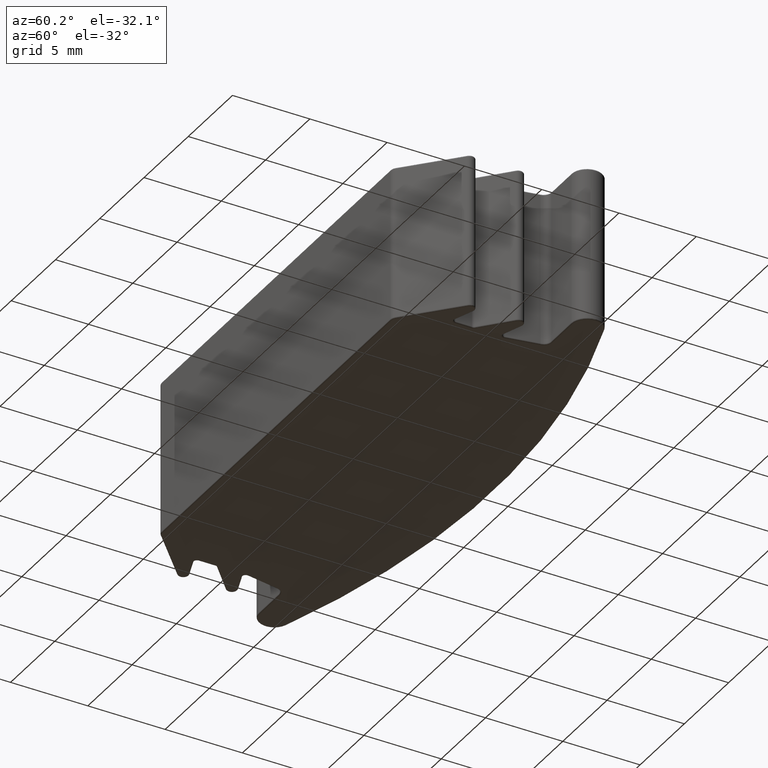
[diagram: clean part render]
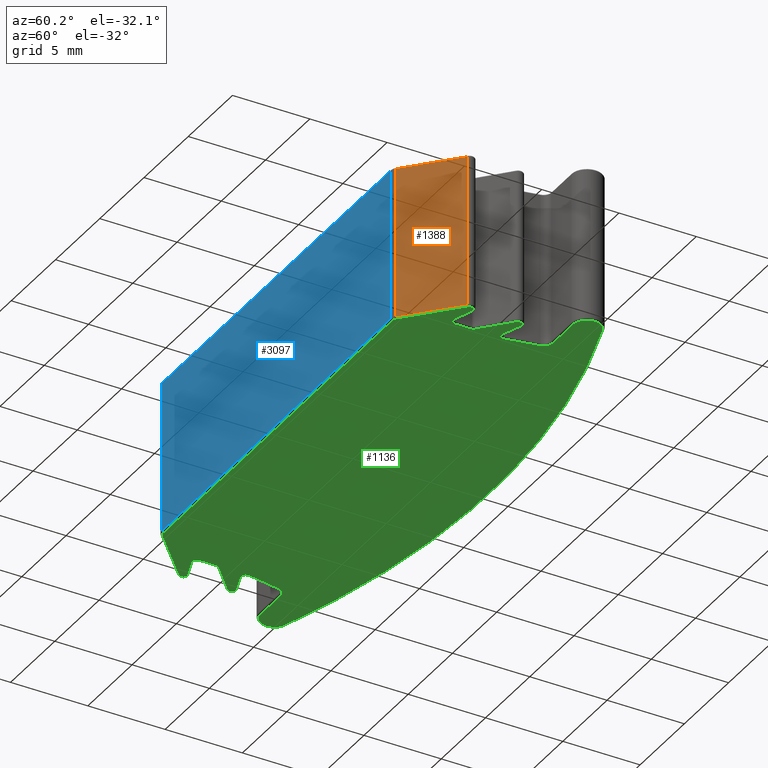
[diagram: same view with three faces highlighted in distinct colors, each labeled with its STEP entity id]
A machine part, auxiliary view with three faces highlighted in distinct colors.
Their STEP definitions:

[orange] entity #1388 — the highlighted planar face has unit normal (0.6747, -0.7381, 0).
#143 = ORIENTED_EDGE ( 'NONE', *, *, #1403, .T. ) ;
#356 = CARTESIAN_POINT ( 'NONE',  ( 13.26152479738510300, 0.1309489122441827900, -4.899999999999999500 ) ) ;
#553 = VECTOR ( 'NONE', #2066, 1000.000000000000000 ) ;
#586 = EDGE_CURVE ( 'NONE', #2586, #2012, #2091, .T. ) ;
#684 = ORIENTED_EDGE ( 'NONE', *, *, #586, .T. ) ;
#893 = CARTESIAN_POINT ( 'NONE',  ( 13.26152479738510300, 0.1309489122441827900, 4.899999999999998600 ) ) ;
#956 = AXIS2_PLACEMENT_3D ( 'NONE', #2329, #2849, #3091 ) ;
#963 = CARTESIAN_POINT ( 'NONE',  ( 16.38614113230621800, 2.987117315987830600, -5.000000000000000000 ) ) ;
#1080 = EDGE_CURVE ( 'NONE', #2012, #1759, #2661, .T. ) ;
#1178 = VECTOR ( 'NONE', #1661, 1000.000000000000100 ) ;
#1379 = PLANE ( 'NONE',  #956 ) ;
#1388 = ADVANCED_FACE ( 'NONE', ( #2170 ), #1379, .T. ) ;
#1403 = EDGE_CURVE ( 'NONE', #1759, #1428, #1810, .T. ) ;
#1428 = VERTEX_POINT ( 'NONE', #893 ) ;
#1448 = CARTESIAN_POINT ( 'NONE',  ( 16.38614113230621800, 2.987117315987830600, 4.899999999999998600 ) ) ;
#1467 = ORIENTED_EDGE ( 'NONE', *, *, #2298, .F. ) ;
#1661 = DIRECTION ( 'NONE',  ( 0.7381021755116327100, 0.6746889494463317300, -0.0000000000000000000 ) ) ;
#1759 = VERTEX_POINT ( 'NONE', #1448 ) ;
#1810 = LINE ( 'NONE', #3081, #2461 ) ;
#1836 = DIRECTION ( 'NONE',  ( -0.7381021755116327100, -0.6746889494463317300, 0.0000000000000000000 ) ) ;
#1918 = CARTESIAN_POINT ( 'NONE',  ( 16.38614113230621800, 2.987117315987830100, -4.899999999999999500 ) ) ;
#2012 = VERTEX_POINT ( 'NONE', #2077 ) ;
#2066 = DIRECTION ( 'NONE',  ( 0.0000000000000000000, 0.0000000000000000000, 1.000000000000000000 ) ) ;
#2077 = CARTESIAN_POINT ( 'NONE',  ( 16.38614113230621800, 2.987117315987830600, -4.899999999999999500 ) ) ;
#2091 = LINE ( 'NONE', #1918, #1178 ) ;
#2170 = FACE_OUTER_BOUND ( 'NONE', #2381, .T. ) ;
#2201 = LINE ( 'NONE', #3025, #553 ) ;
#2209 = DIRECTION ( 'NONE',  ( 0.0000000000000000000, 0.0000000000000000000, 1.000000000000000000 ) ) ;
#2298 = EDGE_CURVE ( 'NONE', #2586, #1428, #2201, .T. ) ;
#2329 = CARTESIAN_POINT ( 'NONE',  ( 16.38614113230621800, 2.987117315987830600, -5.000000000000000000 ) ) ;
#2381 = EDGE_LOOP ( 'NONE', ( #3038, #143, #1467, #684 ) ) ;
#2461 = VECTOR ( 'NONE', #1836, 1000.000000000000100 ) ;
#2584 = VECTOR ( 'NONE', #2209, 1000.000000000000000 ) ;
#2586 = VERTEX_POINT ( 'NONE', #356 ) ;
#2661 = LINE ( 'NONE', #963, #2584 ) ;
#2849 = DIRECTION ( 'NONE',  ( 0.6746889494463318400, -0.7381021755116328200, 0.0000000000000000000 ) ) ;
#3025 = CARTESIAN_POINT ( 'NONE',  ( 13.26152479738510300, 0.1309489122441827900, -5.000000000000000000 ) ) ;
#3038 = ORIENTED_EDGE ( 'NONE', *, *, #1080, .T. ) ;
#3081 = CARTESIAN_POINT ( 'NONE',  ( 16.38614113230621800, 2.987117315987830600, 4.899999999999998600 ) ) ;
#3091 = DIRECTION ( 'NONE',  ( -0.7381021755116327100, -0.6746889494463317300, 0.0000000000000000000 ) ) ;

[blue] entity #3097 — the highlighted planar face has unit normal (-0, -1, 0).
#7 = FACE_OUTER_BOUND ( 'NONE', #2817, .T. ) ;
#222 = LINE ( 'NONE', #226, #257 ) ;
#226 = CARTESIAN_POINT ( 'NONE',  ( 12.92418032266193600, 0.0000000000000000000, -5.000000000000000000 ) ) ;
#257 = VECTOR ( 'NONE', #2901, 1000.000000000000000 ) ;
#570 = DIRECTION ( 'NONE',  ( 1.000000000000000000, -3.038329476900202600E-018, 0.0000000000000000000 ) ) ;
#635 = VERTEX_POINT ( 'NONE', #1265 ) ;
#646 = EDGE_CURVE ( 'NONE', #1727, #735, #2172, .T. ) ;
#676 = VERTEX_POINT ( 'NONE', #1969 ) ;
#735 = VERTEX_POINT ( 'NONE', #1284 ) ;
#770 = AXIS2_PLACEMENT_3D ( 'NONE', #2490, #1070, #570 ) ;
#781 = VECTOR ( 'NONE', #1753, 1000.000000000000000 ) ;
#1070 = DIRECTION ( 'NONE',  ( -3.038329476900202600E-018, -1.000000000000000000, 0.0000000000000000000 ) ) ;
#1075 = EDGE_CURVE ( 'NONE', #635, #1727, #222, .T. ) ;
#1177 = DIRECTION ( 'NONE',  ( 0.0000000000000000000, 0.0000000000000000000, 1.000000000000000000 ) ) ;
#1245 = VECTOR ( 'NONE', #1177, 1000.000000000000000 ) ;
#1265 = CARTESIAN_POINT ( 'NONE',  ( 12.92418032266193600, 0.0000000000000000000, -4.899999999999999500 ) ) ;
#1284 = CARTESIAN_POINT ( 'NONE',  ( -12.92418032266193600, 0.0000000000000000000, 4.899999999999998600 ) ) ;
#1368 = CARTESIAN_POINT ( 'NONE',  ( 12.92418032266193600, 0.0000000000000000000, 4.899999999999998600 ) ) ;
#1484 = CARTESIAN_POINT ( 'NONE',  ( -12.92418032266193600, 0.0000000000000000000, 4.899999999999998600 ) ) ;
#1522 = EDGE_CURVE ( 'NONE', #676, #735, #2882, .T. ) ;
#1608 = CARTESIAN_POINT ( 'NONE',  ( 12.92418032266193600, -7.853583607823466000E-017, -4.899999999999999500 ) ) ;
#1727 = VERTEX_POINT ( 'NONE', #1368 ) ;
#1753 = DIRECTION ( 'NONE',  ( -1.000000000000000000, 3.038329476900202600E-018, -0.0000000000000000000 ) ) ;
#1773 = ORIENTED_EDGE ( 'NONE', *, *, #646, .T. ) ;
#1807 = ORIENTED_EDGE ( 'NONE', *, *, #1075, .T. ) ;
#1845 = DIRECTION ( 'NONE',  ( 1.000000000000000000, -3.038329476900202600E-018, 0.0000000000000000000 ) ) ;
#1850 = EDGE_CURVE ( 'NONE', #676, #635, #2080, .T. ) ;
#1969 = CARTESIAN_POINT ( 'NONE',  ( -12.92418032266193600, 0.0000000000000000000, -4.899999999999999500 ) ) ;
#2080 = LINE ( 'NONE', #1608, #2318 ) ;
#2172 = LINE ( 'NONE', #1484, #781 ) ;
#2318 = VECTOR ( 'NONE', #1845, 1000.000000000000000 ) ;
#2416 = ORIENTED_EDGE ( 'NONE', *, *, #1522, .F. ) ;
#2490 = CARTESIAN_POINT ( 'NONE',  ( -12.92418032266193600, 0.0000000000000000000, -5.000000000000000000 ) ) ;
#2526 = PLANE ( 'NONE',  #770 ) ;
#2570 = CARTESIAN_POINT ( 'NONE',  ( -12.92418032266193600, 0.0000000000000000000, -5.000000000000000000 ) ) ;
#2606 = ORIENTED_EDGE ( 'NONE', *, *, #1850, .T. ) ;
#2817 = EDGE_LOOP ( 'NONE', ( #1807, #1773, #2416, #2606 ) ) ;
#2882 = LINE ( 'NONE', #2570, #1245 ) ;
#2901 = DIRECTION ( 'NONE',  ( 0.0000000000000000000, 0.0000000000000000000, 1.000000000000000000 ) ) ;
#3097 = ADVANCED_FACE ( 'NONE', ( #7 ), #2526, .T. ) ;

[green] entity #1136 — the highlighted planar face has unit normal (0, 0, 1).
#15 = CIRCLE ( 'NONE', #422, 0.3000000000000033800 ) ;
#42 = CARTESIAN_POINT ( 'NONE',  ( 14.80319624381272100, 3.018307729493785000, -5.000000000000000000 ) ) ;
#43 = CARTESIAN_POINT ( 'NONE',  ( 12.92418032266193600, 0.09999999999999889500, -5.000000000000000000 ) ) ;
#59 = DIRECTION ( 'NONE',  ( 1.000000000000000000, 0.0000000000000000000, -0.0000000000000000000 ) ) ;
#65 = VERTEX_POINT ( 'NONE', #1719 ) ;
#73 = AXIS2_PLACEMENT_3D ( 'NONE', #2784, #2537, #1829 ) ;
#84 = LINE ( 'NONE', #923, #396 ) ;
#85 = DIRECTION ( 'NONE',  ( 1.000000000000000000, 0.0000000000000000000, 0.0000000000000000000 ) ) ;
#96 = CARTESIAN_POINT ( 'NONE',  ( 17.64999999999999900, 9.999999999999998200, -5.000000000000000000 ) ) ;
#108 = ORIENTED_EDGE ( 'NONE', *, *, #1893, .T. ) ;
#139 = CIRCLE ( 'NONE', #2701, 0.2500000000000002200 ) ;
#148 = CARTESIAN_POINT ( 'NONE',  ( -13.19405590244047000, 0.2047591297953455800, -5.000000000000000000 ) ) ;
#158 = DIRECTION ( 'NONE',  ( 0.0000000000000000000, 0.0000000000000000000, 1.000000000000000000 ) ) ;
#164 = EDGE_CURVE ( 'NONE', #2479, #2999, #2446, .T. ) ;
#165 = CARTESIAN_POINT ( 'NONE',  ( -16.15000000000000200, 3.245453077416903500, -5.000000000000000000 ) ) ;
#170 = DIRECTION ( 'NONE',  ( 1.000000000000000000, -8.131516293641262500E-016, 0.0000000000000000000 ) ) ;
#183 = ORIENTED_EDGE ( 'NONE', *, *, #387, .T. ) ;
#206 = AXIS2_PLACEMENT_3D ( 'NONE', #437, #1920, #3138 ) ;
#208 = CARTESIAN_POINT ( 'NONE',  ( -14.79928716324520500, 6.166288742814181500, -5.000000000000000000 ) ) ;
#217 = CIRCLE ( 'NONE', #1000, 0.2500000000000002200 ) ;
#238 = CARTESIAN_POINT ( 'NONE',  ( 15.37056213245575800, 9.100000000000001400, -5.000000000000000000 ) ) ;
#239 = DIRECTION ( 'NONE',  ( -0.0000000000000000000, -0.0000000000000000000, -1.000000000000000000 ) ) ;
#263 = EDGE_CURVE ( 'NONE', #2111, #1067, #2174, .T. ) ;
#276 = CARTESIAN_POINT ( 'NONE',  ( -14.69684345351877600, 6.448255560609276800, -5.000000000000000000 ) ) ;
#286 = CIRCLE ( 'NONE', #1486, 0.8999999999999980200 ) ;
#294 = FACE_OUTER_BOUND ( 'NONE', #2358, .T. ) ;
#299 = DIRECTION ( 'NONE',  ( 1.000000000000000000, 0.0000000000000000000, 0.0000000000000000000 ) ) ;
#304 = CARTESIAN_POINT ( 'NONE',  ( -17.64999999999999900, 9.999999999999998200, -5.000000000000000000 ) ) ;
#314 = DIRECTION ( 'NONE',  ( 1.000000000000000000, 0.0000000000000000000, 0.0000000000000000000 ) ) ;
#323 = EDGE_CURVE ( 'NONE', #1406, #1535, #2142, .T. ) ;
#328 = DIRECTION ( 'NONE',  ( 1.000000000000000000, 0.0000000000000000000, 0.0000000000000000000 ) ) ;
#348 = ORIENTED_EDGE ( 'NONE', *, *, #2719, .T. ) ;
#372 = ORIENTED_EDGE ( 'NONE', *, *, #471, .T. ) ;
#375 = ORIENTED_EDGE ( 'NONE', *, *, #164, .T. ) ;
#383 = CIRCLE ( 'NONE', #1158, 54.32041666666667400 ) ;
#387 = EDGE_CURVE ( 'NONE', #1752, #1824, #1479, .T. ) ;
#392 = CARTESIAN_POINT ( 'NONE',  ( 14.40157827324061800, 6.501344856284637400, -5.000000000000000000 ) ) ;
#396 = VECTOR ( 'NONE', #714, 1000.000000000000100 ) ;
#401 = LINE ( 'NONE', #1404, #2460 ) ;
#403 = ORIENTED_EDGE ( 'NONE', *, *, #423, .T. ) ;
#413 = VERTEX_POINT ( 'NONE', #2853 ) ;
#416 = ORIENTED_EDGE ( 'NONE', *, *, #652, .T. ) ;
#420 = DIRECTION ( 'NONE',  ( 1.000000000000000000, 0.0000000000000000000, 0.0000000000000000000 ) ) ;
#422 = AXIS2_PLACEMENT_3D ( 'NONE', #2566, #158, #3088 ) ;
#423 = EDGE_CURVE ( 'NONE', #413, #687, #426, .T. ) ;
#426 = CIRCLE ( 'NONE', #2110, 0.4000000000000010200 ) ;
#437 = CARTESIAN_POINT ( 'NONE',  ( 14.70000000000000300, 3.299999999999999800, -5.000000000000000000 ) ) ;
#438 = VECTOR ( 'NONE', #2625, 1000.000000000000100 ) ;
#440 = DIRECTION ( 'NONE',  ( 0.0000000000000000000, 0.0000000000000000000, 1.000000000000000000 ) ) ;
#442 = CIRCLE ( 'NONE', #206, 0.3000000000000016500 ) ;
#444 = VERTEX_POINT ( 'NONE', #1904 ) ;
#446 = DIRECTION ( 'NONE',  ( -0.7458248930639943500, 0.6661420485797914200, -0.0000000000000000000 ) ) ;
#453 = VERTEX_POINT ( 'NONE', #683 ) ;
#454 = CARTESIAN_POINT ( 'NONE',  ( -14.40157827324061300, 6.501344856284637400, -5.000000000000000000 ) ) ;
#458 = ORIENTED_EDGE ( 'NONE', *, *, #2185, .T. ) ;
#471 = EDGE_CURVE ( 'NONE', #1233, #1246, #2561, .T. ) ;
#490 = AXIS2_PLACEMENT_3D ( 'NONE', #3072, #632, #420 ) ;
#491 = CARTESIAN_POINT ( 'NONE',  ( -17.94735821978175800, 10.84945752638269500, -5.000000000000000000 ) ) ;
#515 = DIRECTION ( 'NONE',  ( 0.0000000000000000000, 0.0000000000000000000, 1.000000000000000000 ) ) ;
#523 = CIRCLE ( 'NONE', #844, 0.2500000000000002200 ) ;
#529 = AXIS2_PLACEMENT_3D ( 'NONE', #1881, #2372, #897 ) ;
#563 = ORIENTED_EDGE ( 'NONE', *, *, #581, .T. ) ;
#581 = EDGE_CURVE ( 'NONE', #849, #453, #2632, .T. ) ;
#599 = LINE ( 'NONE', #2589, #1741 ) ;
#620 = DIRECTION ( 'NONE',  ( -0.1769643189178684300, 0.9842172675938656300, -0.0000000000000000000 ) ) ;
#621 = LINE ( 'NONE', #1628, #887 ) ;
#632 = DIRECTION ( 'NONE',  ( 0.0000000000000000000, 0.0000000000000000000, 1.000000000000000000 ) ) ;
#638 = DIRECTION ( 'NONE',  ( -0.0000000000000000000, -0.0000000000000000000, -1.000000000000000000 ) ) ;
#644 = CARTESIAN_POINT ( 'NONE',  ( 14.70000000000000100, 4.358516086231699800, -5.000000000000000000 ) ) ;
#651 = CARTESIAN_POINT ( 'NONE',  ( -14.78003177189943800, 8.606178591350721200, -5.000000000000000000 ) ) ;
#652 = EDGE_CURVE ( 'NONE', #1012, #1796, #139, .T. ) ;
#668 = ORIENTED_EDGE ( 'NONE', *, *, #1577, .T. ) ;
#683 = CARTESIAN_POINT ( 'NONE',  ( -14.80319624381272100, 3.018307729493785500, -5.000000000000000000 ) ) ;
#687 = VERTEX_POINT ( 'NONE', #43 ) ;
#689 = VERTEX_POINT ( 'NONE', #1734 ) ;
#690 = DIRECTION ( 'NONE',  ( -0.7381021755116327100, -0.6746889494463317300, 0.0000000000000000000 ) ) ;
#703 = EDGE_CURVE ( 'NONE', #2999, #1992, #217, .T. ) ;
#714 = DIRECTION ( 'NONE',  ( -0.1769643189178684300, -0.9842172675938656300, 0.0000000000000000000 ) ) ;
#720 = ORIENTED_EDGE ( 'NONE', *, *, #2121, .T. ) ;
#723 = EDGE_CURVE ( 'NONE', #1124, #1559, #286, .T. ) ;
#746 = ORIENTED_EDGE ( 'NONE', *, *, #865, .T. ) ;
#751 = EDGE_CURVE ( 'NONE', #453, #65, #3139, .T. ) ;
#755 = DIRECTION ( 'NONE',  ( -0.0000000000000000000, -0.0000000000000000000, -1.000000000000000000 ) ) ;
#758 = ORIENTED_EDGE ( 'NONE', *, *, #918, .T. ) ;
#762 = DIRECTION ( 'NONE',  ( 1.000000000000000000, 0.0000000000000000000, 0.0000000000000000000 ) ) ;
#766 = ORIENTED_EDGE ( 'NONE', *, *, #2938, .T. ) ;
#771 = LINE ( 'NONE', #774, #1493 ) ;
#774 = CARTESIAN_POINT ( 'NONE',  ( 14.40000000000000200, 3.299999999999997200, -5.000000000000000000 ) ) ;
#780 = ORIENTED_EDGE ( 'NONE', *, *, #751, .T. ) ;
#797 = DIRECTION ( 'NONE',  ( 0.0000000000000000000, 0.0000000000000000000, 1.000000000000000000 ) ) ;
#806 = CARTESIAN_POINT ( 'NONE',  ( 16.15000000000000200, 6.391038712572399300, -5.000000000000000000 ) ) ;
#814 = VERTEX_POINT ( 'NONE', #1060 ) ;
#816 = DIRECTION ( 'NONE',  ( -0.0000000000000000000, -0.0000000000000000000, -1.000000000000000000 ) ) ;
#817 = DIRECTION ( 'NONE',  ( -0.0000000000000000000, -0.0000000000000000000, -1.000000000000000000 ) ) ;
#835 = DIRECTION ( 'NONE',  ( -1.638825803916117600E-015, 1.000000000000000000, -0.0000000000000000000 ) ) ;
#844 = AXIS2_PLACEMENT_3D ( 'NONE', #165, #2620, #910 ) ;
#849 = VERTEX_POINT ( 'NONE', #2086 ) ;
#853 = EDGE_CURVE ( 'NONE', #814, #1233, #1949, .T. ) ;
#865 = EDGE_CURVE ( 'NONE', #2889, #1266, #1248, .T. ) ;
#871 = EDGE_CURVE ( 'NONE', #65, #2641, #599, .T. ) ;
#887 = VECTOR ( 'NONE', #2146, 1000.000000000000100 ) ;
#891 = CIRCLE ( 'NONE', #529, 0.2500000000000002200 ) ;
#897 = DIRECTION ( 'NONE',  ( 1.000000000000000000, 0.0000000000000000000, 0.0000000000000000000 ) ) ;
#909 = EDGE_CURVE ( 'NONE', #2698, #849, #523, .T. ) ;
#910 = DIRECTION ( 'NONE',  ( 1.000000000000000000, 1.734723475976805500E-015, 0.0000000000000000000 ) ) ;
#918 = EDGE_CURVE ( 'NONE', #1796, #413, #3035, .T. ) ;
#921 = VECTOR ( 'NONE', #3147, 1000.000000000000100 ) ;
#923 = CARTESIAN_POINT ( 'NONE',  ( 14.40157827324061800, 6.501344856284639200, -5.000000000000000000 ) ) ;
#931 = DIRECTION ( 'NONE',  ( -1.000000000000000000, -1.522062523112960000E-015, 0.0000000000000000000 ) ) ;
#933 = CARTESIAN_POINT ( 'NONE',  ( -14.80319624381272100, 3.018307729493785500, -5.000000000000000000 ) ) ;
#982 = ORIENTED_EDGE ( 'NONE', *, *, #2550, .T. ) ;
#985 = EDGE_CURVE ( 'NONE', #2045, #444, #2397, .T. ) ;
#995 = AXIS2_PLACEMENT_3D ( 'NONE', #2947, #2240, #59 ) ;
#1000 = AXIS2_PLACEMENT_3D ( 'NONE', #806, #3005, #328 ) ;
#1012 = VERTEX_POINT ( 'NONE', #2145 ) ;
#1022 = VERTEX_POINT ( 'NONE', #454 ) ;
#1030 = DIRECTION ( 'NONE',  ( -1.638825803916117600E-015, -1.000000000000000000, 0.0000000000000000000 ) ) ;
#1060 = CARTESIAN_POINT ( 'NONE',  ( -16.31653551214494900, 6.204582489306398300, -5.000000000000000000 ) ) ;
#1066 = CARTESIAN_POINT ( 'NONE',  ( -14.79928716324520500, 6.166288742814181500, -5.000000000000000000 ) ) ;
#1067 = VERTEX_POINT ( 'NONE', #491 ) ;
#1072 = CARTESIAN_POINT ( 'NONE',  ( 16.31653551214494900, 6.204582489306400100, -5.000000000000000000 ) ) ;
#1079 = EDGE_CURVE ( 'NONE', #1559, #1670, #2089, .T. ) ;
#1107 = DIRECTION ( 'NONE',  ( 0.0000000000000000000, 0.0000000000000000000, 1.000000000000000000 ) ) ;
#1124 = VERTEX_POINT ( 'NONE', #2199 ) ;
#1134 = EDGE_CURVE ( 'NONE', #2636, #1022, #2919, .T. ) ;
#1136 = ADVANCED_FACE ( 'NONE', ( #294 ), #2963, .F. ) ;
#1158 = AXIS2_PLACEMENT_3D ( 'NONE', #2998, #817, #1518 ) ;
#1161 = CARTESIAN_POINT ( 'NONE',  ( -15.37056213245575800, 9.099999999999999600, -5.000000000000000000 ) ) ;
#1162 = AXIS2_PLACEMENT_3D ( 'NONE', #2790, #1107, #3034 ) ;
#1179 = EDGE_CURVE ( 'NONE', #1246, #2636, #2364, .T. ) ;
#1198 = ORIENTED_EDGE ( 'NONE', *, *, #909, .T. ) ;
#1205 = DIRECTION ( 'NONE',  ( 1.000000000000000000, 7.709882115452493200E-015, 0.0000000000000000000 ) ) ;
#1211 = VERTEX_POINT ( 'NONE', #2974 ) ;
#1233 = VERTEX_POINT ( 'NONE', #2751 ) ;
#1235 = CARTESIAN_POINT ( 'NONE',  ( 16.15000000000000200, 3.245453077416903500, -5.000000000000000000 ) ) ;
#1246 = VERTEX_POINT ( 'NONE', #1066 ) ;
#1248 = LINE ( 'NONE', #2350, #2955 ) ;
#1251 = ORIENTED_EDGE ( 'NONE', *, *, #723, .T. ) ;
#1254 = DIRECTION ( 'NONE',  ( 1.000000000000000000, 0.0000000000000000000, 0.0000000000000000000 ) ) ;
#1266 = VERTEX_POINT ( 'NONE', #2783 ) ;
#1275 = LINE ( 'NONE', #1434, #1393 ) ;
#1277 = AXIS2_PLACEMENT_3D ( 'NONE', #2764, #1556, #85 ) ;
#1315 = CARTESIAN_POINT ( 'NONE',  ( -14.70000000000000300, 3.299999999999999800, -5.000000000000000000 ) ) ;
#1327 = VECTOR ( 'NONE', #1452, 1000.000000000000000 ) ;
#1393 = VECTOR ( 'NONE', #3129, 1000.000000000000000 ) ;
#1404 = CARTESIAN_POINT ( 'NONE',  ( -17.64999999999999900, 9.099999999999997900, -5.000000000000000000 ) ) ;
#1406 = VERTEX_POINT ( 'NONE', #651 ) ;
#1422 = CARTESIAN_POINT ( 'NONE',  ( 17.64999999999999900, 9.099999999999997900, -5.000000000000000000 ) ) ;
#1424 = VECTOR ( 'NONE', #446, 1000.000000000000100 ) ;
#1426 = CARTESIAN_POINT ( 'NONE',  ( -16.31867223736158600, 3.060927533538993800, -5.000000000000000000 ) ) ;
#1434 = CARTESIAN_POINT ( 'NONE',  ( -12.92418032266193600, 0.1000000000000000100, -5.000000000000000000 ) ) ;
#1446 = AXIS2_PLACEMENT_3D ( 'NONE', #1315, #797, #314 ) ;
#1452 = DIRECTION ( 'NONE',  ( 0.9389742350207133100, -0.3439874793757271600, -0.0000000000000000000 ) ) ;
#1471 = CARTESIAN_POINT ( 'NONE',  ( 16.40000000000000200, 6.391038712572399300, -5.000000000000000000 ) ) ;
#1479 = CIRCLE ( 'NONE', #1814, 0.4000000000000010200 ) ;
#1486 = AXIS2_PLACEMENT_3D ( 'NONE', #96, #816, #1517 ) ;
#1493 = VECTOR ( 'NONE', #1030, 1000.000000000000000 ) ;
#1517 = DIRECTION ( 'NONE',  ( 1.000000000000000000, 0.0000000000000000000, 0.0000000000000000000 ) ) ;
#1518 = DIRECTION ( 'NONE',  ( 1.000000000000000000, 5.365082999132067900E-015, 0.0000000000000000000 ) ) ;
#1535 = VERTEX_POINT ( 'NONE', #1161 ) ;
#1549 = ORIENTED_EDGE ( 'NONE', *, *, #1867, .T. ) ;
#1555 = VERTEX_POINT ( 'NONE', #1908 ) ;
#1556 = DIRECTION ( 'NONE',  ( 0.0000000000000000000, 0.0000000000000000000, 1.000000000000000000 ) ) ;
#1559 = VERTEX_POINT ( 'NONE', #1422 ) ;
#1568 = EDGE_CURVE ( 'NONE', #1555, #2889, #442, .T. ) ;
#1577 = EDGE_CURVE ( 'NONE', #687, #1752, #1275, .T. ) ;
#1605 = DIRECTION ( 'NONE',  ( 0.9389742350207133100, 0.3439874793757271600, -0.0000000000000000000 ) ) ;
#1611 = AXIS2_PLACEMENT_3D ( 'NONE', #2704, #2219, #1254 ) ;
#1618 = CARTESIAN_POINT ( 'NONE',  ( -14.39684345351877100, 6.448255560609276800, -5.000000000000000000 ) ) ;
#1628 = CARTESIAN_POINT ( 'NONE',  ( 16.06463024189465800, 6.626011060734973600, -5.000000000000000000 ) ) ;
#1644 = ORIENTED_EDGE ( 'NONE', *, *, #3164, .T. ) ;
#1659 = CARTESIAN_POINT ( 'NONE',  ( 14.50015738542606900, 4.582263554150902300, -5.000000000000000000 ) ) ;
#1670 = VERTEX_POINT ( 'NONE', #2056 ) ;
#1674 = ORIENTED_EDGE ( 'NONE', *, *, #2226, .T. ) ;
#1675 = AXIS2_PLACEMENT_3D ( 'NONE', #276, #515, #762 ) ;
#1696 = CIRCLE ( 'NONE', #1277, 0.2999999999999999300 ) ;
#1706 = DIRECTION ( 'NONE',  ( 1.000000000000000000, 0.0000000000000000000, 0.0000000000000000000 ) ) ;
#1708 = CARTESIAN_POINT ( 'NONE',  ( 17.94735821978175800, 10.84945752638269500, -5.000000000000000000 ) ) ;
#1713 = ORIENTED_EDGE ( 'NONE', *, *, #1910, .T. ) ;
#1719 = CARTESIAN_POINT ( 'NONE',  ( -14.40000000000000200, 3.299999999999999800, -5.000000000000000000 ) ) ;
#1734 = CARTESIAN_POINT ( 'NONE',  ( 14.79928716324520400, 6.166288742814186800, -5.000000000000000000 ) ) ;
#1741 = VECTOR ( 'NONE', #835, 1000.000000000000000 ) ;
#1752 = VERTEX_POINT ( 'NONE', #2022 ) ;
#1767 = VECTOR ( 'NONE', #2413, 1000.000000000000100 ) ;
#1775 = DIRECTION ( 'NONE',  ( -0.0000000000000000000, -0.0000000000000000000, -1.000000000000000000 ) ) ;
#1782 = ORIENTED_EDGE ( 'NONE', *, *, #853, .T. ) ;
#1796 = VERTEX_POINT ( 'NONE', #2129 ) ;
#1814 = AXIS2_PLACEMENT_3D ( 'NONE', #2583, #1874, #170 ) ;
#1817 = VERTEX_POINT ( 'NONE', #3062 ) ;
#1824 = VERTEX_POINT ( 'NONE', #148 ) ;
#1829 = DIRECTION ( 'NONE',  ( 1.000000000000000000, 0.0000000000000000000, 0.0000000000000000000 ) ) ;
#1831 = CARTESIAN_POINT ( 'NONE',  ( 14.50015738542606400, 4.582263554150897800, -5.000000000000000000 ) ) ;
#1848 = VECTOR ( 'NONE', #620, 1000.000000000000100 ) ;
#1867 = EDGE_CURVE ( 'NONE', #1876, #689, #15, .T. ) ;
#1874 = DIRECTION ( 'NONE',  ( -0.0000000000000000000, -0.0000000000000000000, -1.000000000000000000 ) ) ;
#1876 = VERTEX_POINT ( 'NONE', #392 ) ;
#1881 = CARTESIAN_POINT ( 'NONE',  ( 16.15000000000000200, 3.245453077416903500, -5.000000000000000000 ) ) ;
#1893 = EDGE_CURVE ( 'NONE', #1211, #814, #3102, .T. ) ;
#1901 = EDGE_CURVE ( 'NONE', #1535, #2111, #401, .T. ) ;
#1904 = CARTESIAN_POINT ( 'NONE',  ( 14.40000000000000200, 4.358516086231699800, -5.000000000000000000 ) ) ;
#1908 = CARTESIAN_POINT ( 'NONE',  ( 14.40000000000000200, 3.299999999999999800, -5.000000000000000000 ) ) ;
#1910 = EDGE_CURVE ( 'NONE', #1992, #2045, #2280, .T. ) ;
#1912 = AXIS2_PLACEMENT_3D ( 'NONE', #2749, #2981, #2946 ) ;
#1920 = DIRECTION ( 'NONE',  ( 0.0000000000000000000, 0.0000000000000000000, 1.000000000000000000 ) ) ;
#1928 = CARTESIAN_POINT ( 'NONE',  ( -16.31653551214495200, 6.204582489306400100, -5.000000000000000000 ) ) ;
#1949 = CIRCLE ( 'NONE', #73, 0.2500000000000002200 ) ;
#1992 = VERTEX_POINT ( 'NONE', #1072 ) ;
#2022 = CARTESIAN_POINT ( 'NONE',  ( -12.92418032266193600, 0.1000000000000000100, -5.000000000000000000 ) ) ;
#2030 = CARTESIAN_POINT ( 'NONE',  ( 16.06463024189465100, 6.626011060734970900, -5.000000000000000000 ) ) ;
#2039 = AXIS2_PLACEMENT_3D ( 'NONE', #644, #440, #1706 ) ;
#2045 = VERTEX_POINT ( 'NONE', #1831 ) ;
#2056 = CARTESIAN_POINT ( 'NONE',  ( 15.37056213245575800, 9.100000000000001400, -5.000000000000000000 ) ) ;
#2086 = CARTESIAN_POINT ( 'NONE',  ( -16.06400313015607000, 3.480196636172082900, -5.000000000000000000 ) ) ;
#2089 = LINE ( 'NONE', #238, #2246 ) ;
#2110 = AXIS2_PLACEMENT_3D ( 'NONE', #3079, #638, #2596 ) ;
#2111 = VERTEX_POINT ( 'NONE', #2590 ) ;
#2116 = ORIENTED_EDGE ( 'NONE', *, *, #1901, .T. ) ;
#2121 = EDGE_CURVE ( 'NONE', #1670, #1817, #2654, .T. ) ;
#2129 = CARTESIAN_POINT ( 'NONE',  ( 16.31867223736158600, 3.060927533538994700, -5.000000000000000000 ) ) ;
#2142 = CIRCLE ( 'NONE', #1162, 0.6000000000000015300 ) ;
#2145 = CARTESIAN_POINT ( 'NONE',  ( 16.40000000000000200, 3.245453077416903500, -5.000000000000000000 ) ) ;
#2146 = DIRECTION ( 'NONE',  ( 0.9398893926502898100, 0.3414790324214202500, -0.0000000000000000000 ) ) ;
#2174 = CIRCLE ( 'NONE', #2857, 0.8999999999999980200 ) ;
#2185 = EDGE_CURVE ( 'NONE', #1266, #1012, #891, .T. ) ;
#2199 = CARTESIAN_POINT ( 'NONE',  ( 18.54999999999999700, 9.999999999999998200, -5.000000000000000000 ) ) ;
#2219 = DIRECTION ( 'NONE',  ( 0.0000000000000000000, 0.0000000000000000000, 1.000000000000000000 ) ) ;
#2226 = EDGE_CURVE ( 'NONE', #1817, #1876, #84, .T. ) ;
#2229 = EDGE_CURVE ( 'NONE', #1824, #2698, #2615, .T. ) ;
#2240 = DIRECTION ( 'NONE',  ( 0.0000000000000000000, 0.0000000000000000000, 1.000000000000000000 ) ) ;
#2246 = VECTOR ( 'NONE', #2676, 1000.000000000000000 ) ;
#2262 = DIRECTION ( 'NONE',  ( 1.000000000000000000, 0.0000000000000000000, 0.0000000000000000000 ) ) ;
#2280 = LINE ( 'NONE', #1659, #438 ) ;
#2321 = CARTESIAN_POINT ( 'NONE',  ( -14.78003177189943800, 8.606178591350721200, -5.000000000000000000 ) ) ;
#2347 = ORIENTED_EDGE ( 'NONE', *, *, #703, .T. ) ;
#2350 = CARTESIAN_POINT ( 'NONE',  ( 16.06400313015607000, 3.480196636172083300, -5.000000000000000000 ) ) ;
#2358 = EDGE_LOOP ( 'NONE', ( #2116, #2848, #1644, #2903, #1251, #2935, #720, #1674, #1549, #348, #375, #2347, #1713, #2734, #766, #2436, #746, #458, #416, #758, #403, #668, #183, #3044, #1198, #563, #780, #2770, #3032, #108, #1782, #372, #2970, #2709, #982, #2393 ) ) ;
#2364 = CIRCLE ( 'NONE', #1675, 0.3000000000000033800 ) ;
#2372 = DIRECTION ( 'NONE',  ( -0.0000000000000000000, -0.0000000000000000000, -1.000000000000000000 ) ) ;
#2393 = ORIENTED_EDGE ( 'NONE', *, *, #323, .T. ) ;
#2397 = CIRCLE ( 'NONE', #2039, 0.2999999999999999300 ) ;
#2413 = DIRECTION ( 'NONE',  ( -0.7381021755116327100, 0.6746889494463317300, -0.0000000000000000000 ) ) ;
#2436 = ORIENTED_EDGE ( 'NONE', *, *, #1568, .T. ) ;
#2446 = CIRCLE ( 'NONE', #1912, 0.2500000000000002200 ) ;
#2455 = EDGE_CURVE ( 'NONE', #2641, #1211, #1696, .T. ) ;
#2460 = VECTOR ( 'NONE', #931, 1000.000000000000000 ) ;
#2479 = VERTEX_POINT ( 'NONE', #2030 ) ;
#2537 = DIRECTION ( 'NONE',  ( -0.0000000000000000000, -0.0000000000000000000, -1.000000000000000000 ) ) ;
#2550 = EDGE_CURVE ( 'NONE', #1022, #1406, #2690, .T. ) ;
#2561 = LINE ( 'NONE', #208, #921 ) ;
#2566 = CARTESIAN_POINT ( 'NONE',  ( 14.69684345351877600, 6.448255560609276800, -5.000000000000000000 ) ) ;
#2583 = CARTESIAN_POINT ( 'NONE',  ( -12.92418032266193600, 0.5000000000000004400, -5.000000000000000000 ) ) ;
#2589 = CARTESIAN_POINT ( 'NONE',  ( -14.40000000000000400, 4.358516086231699800, -5.000000000000000000 ) ) ;
#2590 = CARTESIAN_POINT ( 'NONE',  ( -17.64999999999999900, 9.099999999999997900, -5.000000000000000000 ) ) ;
#2596 = DIRECTION ( 'NONE',  ( 1.000000000000000000, -8.131516293641262500E-016, 0.0000000000000000000 ) ) ;
#2604 = CARTESIAN_POINT ( 'NONE',  ( 13.19405590244046800, 0.2047591297953468800, -5.000000000000000000 ) ) ;
#2615 = LINE ( 'NONE', #1426, #1767 ) ;
#2620 = DIRECTION ( 'NONE',  ( -0.0000000000000000000, -0.0000000000000000000, -1.000000000000000000 ) ) ;
#2625 = DIRECTION ( 'NONE',  ( -0.7458248930639943500, -0.6661420485797914200, 0.0000000000000000000 ) ) ;
#2632 = LINE ( 'NONE', #933, #1327 ) ;
#2636 = VERTEX_POINT ( 'NONE', #1618 ) ;
#2641 = VERTEX_POINT ( 'NONE', #3087 ) ;
#2654 = CIRCLE ( 'NONE', #490, 0.6000000000000015300 ) ;
#2676 = DIRECTION ( 'NONE',  ( -1.000000000000000000, 1.522062523112960000E-015, 0.0000000000000000000 ) ) ;
#2690 = LINE ( 'NONE', #2321, #1848 ) ;
#2698 = VERTEX_POINT ( 'NONE', #3073 ) ;
#2701 = AXIS2_PLACEMENT_3D ( 'NONE', #1235, #755, #299 ) ;
#2704 = CARTESIAN_POINT ( 'NONE',  ( -14.69684345351877600, 6.448255560609276800, -5.000000000000000000 ) ) ;
#2709 = ORIENTED_EDGE ( 'NONE', *, *, #1134, .T. ) ;
#2719 = EDGE_CURVE ( 'NONE', #689, #2479, #621, .T. ) ;
#2734 = ORIENTED_EDGE ( 'NONE', *, *, #985, .T. ) ;
#2749 = CARTESIAN_POINT ( 'NONE',  ( 16.15000000000000200, 6.391038712572399300, -5.000000000000000000 ) ) ;
#2751 = CARTESIAN_POINT ( 'NONE',  ( -16.06463024189465100, 6.626011060734973600, -5.000000000000000000 ) ) ;
#2764 = CARTESIAN_POINT ( 'NONE',  ( -14.70000000000000100, 4.358516086231699800, -5.000000000000000000 ) ) ;
#2770 = ORIENTED_EDGE ( 'NONE', *, *, #871, .T. ) ;
#2783 = CARTESIAN_POINT ( 'NONE',  ( 16.06400313015607000, 3.480196636172083300, -5.000000000000000000 ) ) ;
#2784 = CARTESIAN_POINT ( 'NONE',  ( -16.15000000000000200, 6.391038712572399300, -5.000000000000000000 ) ) ;
#2790 = CARTESIAN_POINT ( 'NONE',  ( -15.37056213245575800, 8.499999999999998200, -5.000000000000000000 ) ) ;
#2827 = EDGE_CURVE ( 'NONE', #2847, #1124, #2983, .T. ) ;
#2847 = VERTEX_POINT ( 'NONE', #1708 ) ;
#2848 = ORIENTED_EDGE ( 'NONE', *, *, #263, .T. ) ;
#2853 = CARTESIAN_POINT ( 'NONE',  ( 13.19405590244046800, 0.2047591297953473600, -5.000000000000000000 ) ) ;
#2857 = AXIS2_PLACEMENT_3D ( 'NONE', #304, #1775, #2262 ) ;
#2889 = VERTEX_POINT ( 'NONE', #42 ) ;
#2897 = CARTESIAN_POINT ( 'NONE',  ( 17.64999999999999900, 9.999999999999998200, -5.000000000000000000 ) ) ;
#2903 = ORIENTED_EDGE ( 'NONE', *, *, #2827, .T. ) ;
#2919 = CIRCLE ( 'NONE', #1611, 0.3000000000000033800 ) ;
#2935 = ORIENTED_EDGE ( 'NONE', *, *, #1079, .T. ) ;
#2938 = EDGE_CURVE ( 'NONE', #444, #1555, #771, .T. ) ;
#2946 = DIRECTION ( 'NONE',  ( 1.000000000000000000, 1.387778780781444400E-014, 0.0000000000000000000 ) ) ;
#2947 = CARTESIAN_POINT ( 'NONE',  ( 0.0000000000000000000, -40.42041666666668900, -5.000000000000000000 ) ) ;
#2955 = VECTOR ( 'NONE', #1605, 1000.000000000000000 ) ;
#2963 = PLANE ( 'NONE',  #995 ) ;
#2970 = ORIENTED_EDGE ( 'NONE', *, *, #1179, .T. ) ;
#2971 = AXIS2_PLACEMENT_3D ( 'NONE', #2897, #239, #1205 ) ;
#2974 = CARTESIAN_POINT ( 'NONE',  ( -14.50015738542606400, 4.582263554150897800, -5.000000000000000000 ) ) ;
#2981 = DIRECTION ( 'NONE',  ( -0.0000000000000000000, -0.0000000000000000000, -1.000000000000000000 ) ) ;
#2983 = CIRCLE ( 'NONE', #2971, 0.8999999999999980200 ) ;
#2998 = CARTESIAN_POINT ( 'NONE',  ( 0.0000000000000000000, -40.42041666666668900, -5.000000000000000000 ) ) ;
#2999 = VERTEX_POINT ( 'NONE', #1471 ) ;
#3005 = DIRECTION ( 'NONE',  ( -0.0000000000000000000, -0.0000000000000000000, -1.000000000000000000 ) ) ;
#3032 = ORIENTED_EDGE ( 'NONE', *, *, #2455, .T. ) ;
#3034 = DIRECTION ( 'NONE',  ( 1.000000000000000000, 0.0000000000000000000, 0.0000000000000000000 ) ) ;
#3035 = LINE ( 'NONE', #2604, #3108 ) ;
#3044 = ORIENTED_EDGE ( 'NONE', *, *, #2229, .T. ) ;
#3062 = CARTESIAN_POINT ( 'NONE',  ( 14.78003177189943800, 8.606178591350721200, -5.000000000000000000 ) ) ;
#3072 = CARTESIAN_POINT ( 'NONE',  ( 15.37056213245575800, 8.499999999999998200, -5.000000000000000000 ) ) ;
#3073 = CARTESIAN_POINT ( 'NONE',  ( -16.31867223736158600, 3.060927533538993800, -5.000000000000000000 ) ) ;
#3079 = CARTESIAN_POINT ( 'NONE',  ( 12.92418032266193600, 0.5000000000000004400, -5.000000000000000000 ) ) ;
#3087 = CARTESIAN_POINT ( 'NONE',  ( -14.40000000000000400, 4.358516086231699800, -5.000000000000000000 ) ) ;
#3088 = DIRECTION ( 'NONE',  ( 1.000000000000000000, 0.0000000000000000000, 0.0000000000000000000 ) ) ;
#3102 = LINE ( 'NONE', #1928, #1424 ) ;
#3108 = VECTOR ( 'NONE', #690, 1000.000000000000100 ) ;
#3129 = DIRECTION ( 'NONE',  ( -1.000000000000000000, 3.038329476900202600E-018, -0.0000000000000000000 ) ) ;
#3138 = DIRECTION ( 'NONE',  ( 1.000000000000000000, 0.0000000000000000000, 0.0000000000000000000 ) ) ;
#3139 = CIRCLE ( 'NONE', #1446, 0.3000000000000016500 ) ;
#3147 = DIRECTION ( 'NONE',  ( 0.9398893926502898100, -0.3414790324214202500, -0.0000000000000000000 ) ) ;
#3164 = EDGE_CURVE ( 'NONE', #1067, #2847, #383, .T. ) ;